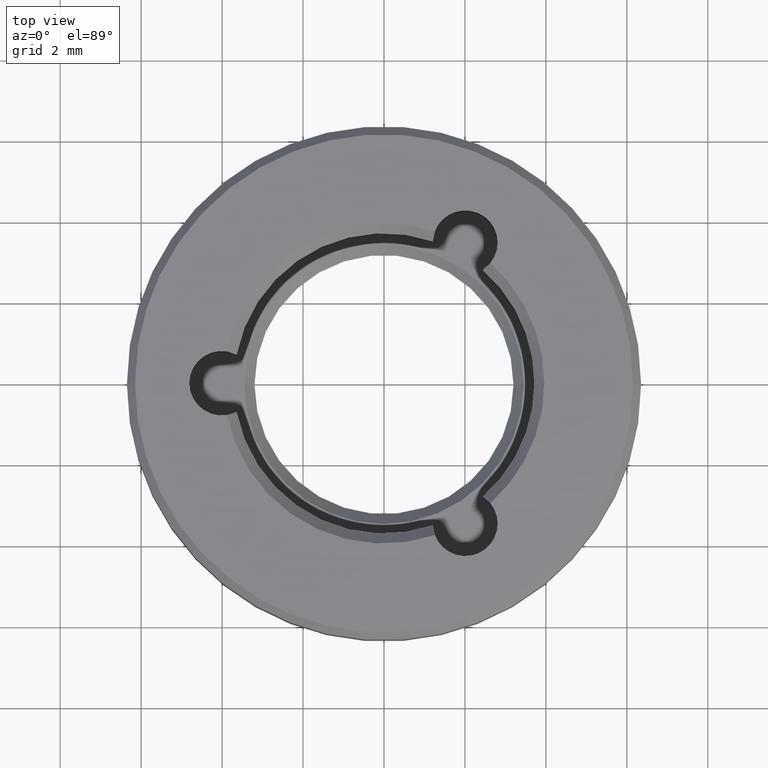
[diagram: clean part render]
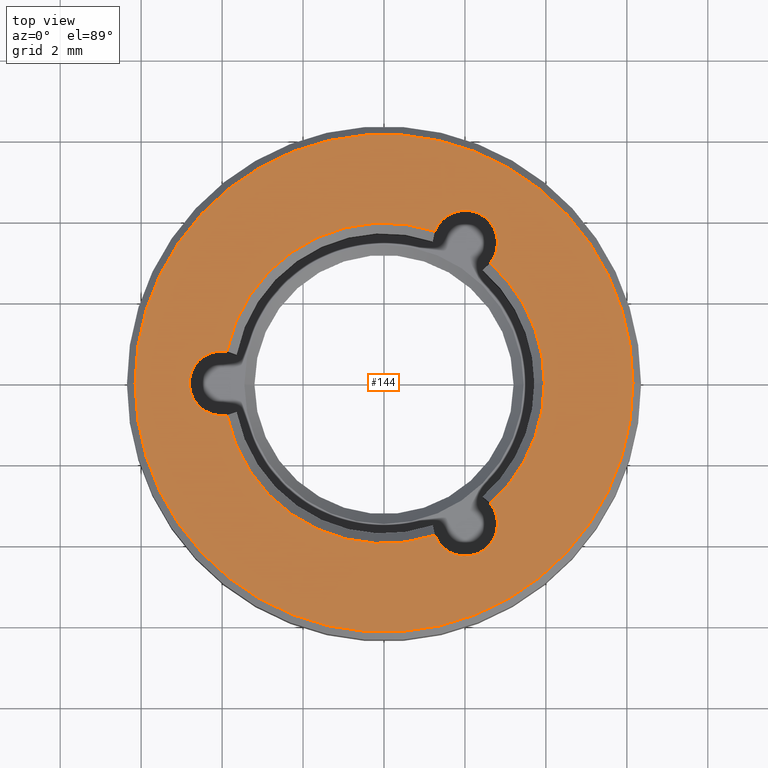
[diagram: same view with one face highlighted and labeled with its STEP entity id]
A machine part, top view. The second image highlights one B-rep face of the part: STEP entity #144.
In plain terms, the highlighted planar face has unit normal (0, 0, 1).
Its self-contained STEP definition (entity closure, byte-faithful):
#3 = AXIS2_PLACEMENT_3D ( 'NONE', #308, #315, #158 ) ;
#7 = VERTEX_POINT ( 'NONE', #389 ) ;
#11 = VERTEX_POINT ( 'NONE', #59 ) ;
#16 = VERTEX_POINT ( 'NONE', #618 ) ;
#20 = CIRCLE ( 'NONE', #313, 0.8000000000000010436 ) ;
#30 = VERTEX_POINT ( 'NONE', #197 ) ;
#37 = AXIS2_PLACEMENT_3D ( 'NONE', #757, #761, #411 ) ;
#59 = CARTESIAN_POINT ( 'NONE',  ( 2.623940108579774222, -2.965895869140787511, 2.200000000000000178 ) ) ;
#61 = EDGE_CURVE ( 'NONE', #16, #11, #572, .T. ) ;
#63 = CIRCLE ( 'NONE', #605, 3.960000000000003517 ) ;
#66 = CARTESIAN_POINT ( 'NONE',  ( 2.623940108579730701, 2.965895869140826591, 2.200000000000000178 ) ) ;
#70 = FACE_OUTER_BOUND ( 'NONE', #221, .T. ) ;
#96 = DIRECTION ( 'NONE',  ( 0.000000000000000000, 0.000000000000000000, 1.000000000000000000 ) ) ;
#103 = VERTEX_POINT ( 'NONE', #843 ) ;
#125 = DIRECTION ( 'NONE',  ( 1.000000000000000000, 0.000000000000000000, 0.000000000000000000 ) ) ;
#130 = VERTEX_POINT ( 'NONE', #66 ) ;
#134 = AXIS2_PLACEMENT_3D ( 'NONE', #479, #145, #351 ) ;
#139 = EDGE_LOOP ( 'NONE', ( #272, #749, #279, #310, #711, #725, #471, #446, #688 ) ) ;
#140 = DIRECTION ( 'NONE',  ( 0.000000000000000000, 0.000000000000000000, 1.000000000000000000 ) ) ;
#143 = DIRECTION ( 'NONE',  ( -0.4999999999999920064, -0.8660254037844432595, 0.000000000000000000 ) ) ;
#144 = ADVANCED_FACE ( 'NONE', ( #483, #70 ), #274, .T. ) ;
#145 = DIRECTION ( 'NONE',  ( -0.000000000000000000, -0.000000000000000000, -1.000000000000000000 ) ) ;
#158 = DIRECTION ( 'NONE',  ( -0.5000000000000039968, 0.8660254037844362651, 0.000000000000000000 ) ) ;
#163 = DIRECTION ( 'NONE',  ( 0.000000000000000000, 0.000000000000000000, 1.000000000000000000 ) ) ;
#174 = DIRECTION ( 'NONE',  ( 1.000000000000000000, 0.000000000000000000, 0.000000000000000000 ) ) ;
#178 = DIRECTION ( 'NONE',  ( 1.000000000000000000, -3.552713678800500929E-15, 0.000000000000000000 ) ) ;
#181 = CIRCLE ( 'NONE', #403, 3.960000000000003517 ) ;
#191 = EDGE_CURVE ( 'NONE', #30, #520, #883, .T. ) ;
#197 = CARTESIAN_POINT ( 'NONE',  ( -6.149999999999999467, 0.000000000000000000, 2.200000000000000178 ) ) ;
#221 = EDGE_LOOP ( 'NONE', ( #595, #903 ) ) ;
#238 = CARTESIAN_POINT ( 'NONE',  ( -3.880511221945140754, -0.7894508574685707991, 2.200000000000000178 ) ) ;
#244 = EDGE_CURVE ( 'NONE', #861, #103, #590, .T. ) ;
#256 = AXIS2_PLACEMENT_3D ( 'NONE', #571, #304, #434 ) ;
#268 = CIRCLE ( 'NONE', #3, 0.8000000000000009326 ) ;
#272 = ORIENTED_EDGE ( 'NONE', *, *, #277, .F. ) ;
#274 = PLANE ( 'NONE',  #37 ) ;
#277 = EDGE_CURVE ( 'NONE', #130, #7, #575, .T. ) ;
#279 = ORIENTED_EDGE ( 'NONE', *, *, #61, .T. ) ;
#280 = AXIS2_PLACEMENT_3D ( 'NONE', #355, #364, #633 ) ;
#284 = EDGE_CURVE ( 'NONE', #103, #11, #268, .T. ) ;
#293 = CARTESIAN_POINT ( 'NONE',  ( 2.004999999999967475, 3.472761869175617910, 2.200000000000000178 ) ) ;
#297 = EDGE_CURVE ( 'NONE', #861, #676, #869, .T. ) ;
#304 = DIRECTION ( 'NONE',  ( 0.000000000000000000, 0.000000000000000000, 1.000000000000000000 ) ) ;
#308 = CARTESIAN_POINT ( 'NONE',  ( 2.005000000000016769, -3.472761869175589489, 2.200000000000000178 ) ) ;
#310 = ORIENTED_EDGE ( 'NONE', *, *, #284, .F. ) ;
#313 = AXIS2_PLACEMENT_3D ( 'NONE', #555, #140, #143 ) ;
#315 = DIRECTION ( 'NONE',  ( 0.000000000000000000, 0.000000000000000000, 1.000000000000000000 ) ) ;
#318 = EDGE_CURVE ( 'NONE', #130, #16, #63, .T. ) ;
#339 = AXIS2_PLACEMENT_3D ( 'NONE', #343, #900, #125 ) ;
#343 = CARTESIAN_POINT ( 'NONE',  ( 0.000000000000000000, 0.000000000000000000, 2.200000000000000178 ) ) ;
#351 = DIRECTION ( 'NONE',  ( 1.000000000000000000, 0.000000000000000000, 0.000000000000000000 ) ) ;
#355 = CARTESIAN_POINT ( 'NONE',  ( -4.009999999999999787, -4.910833664580885594E-16, 2.200000000000000178 ) ) ;
#362 = VERTEX_POINT ( 'NONE', #598 ) ;
#364 = DIRECTION ( 'NONE',  ( 0.000000000000000000, 0.000000000000000000, 1.000000000000000000 ) ) ;
#373 = CARTESIAN_POINT ( 'NONE',  ( 0.000000000000000000, 0.000000000000000000, 2.200000000000000178 ) ) ;
#389 = CARTESIAN_POINT ( 'NONE',  ( 2.804999999999968185, 3.472761869175617910, 2.200000000000000178 ) ) ;
#403 = AXIS2_PLACEMENT_3D ( 'NONE', #373, #507, #844 ) ;
#411 = DIRECTION ( 'NONE',  ( 1.000000000000000000, 0.000000000000000000, -0.000000000000000000 ) ) ;
#434 = DIRECTION ( 'NONE',  ( -0.5000000000000039968, 0.8660254037844362651, 0.000000000000000000 ) ) ;
#446 = ORIENTED_EDGE ( 'NONE', *, *, #763, .T. ) ;
#454 = AXIS2_PLACEMENT_3D ( 'NONE', #293, #163, #518 ) ;
#457 = EDGE_CURVE ( 'NONE', #520, #30, #776, .T. ) ;
#471 = ORIENTED_EDGE ( 'NONE', *, *, #513, .F. ) ;
#479 = CARTESIAN_POINT ( 'NONE',  ( 0.000000000000000000, 0.000000000000000000, 2.200000000000000178 ) ) ;
#483 = FACE_BOUND ( 'NONE', #139, .T. ) ;
#485 = CARTESIAN_POINT ( 'NONE',  ( 6.149999999999999467, 7.654042494670954648E-16, 2.200000000000000178 ) ) ;
#490 = EDGE_CURVE ( 'NONE', #7, #641, #20, .T. ) ;
#501 = CARTESIAN_POINT ( 'NONE',  ( 0.000000000000000000, 0.000000000000000000, 2.200000000000000178 ) ) ;
#505 = DIRECTION ( 'NONE',  ( -0.000000000000000000, -0.000000000000000000, -1.000000000000000000 ) ) ;
#507 = DIRECTION ( 'NONE',  ( -0.000000000000000000, -0.000000000000000000, -1.000000000000000000 ) ) ;
#513 = EDGE_CURVE ( 'NONE', #362, #676, #726, .T. ) ;
#518 = DIRECTION ( 'NONE',  ( -0.4999999999999920064, -0.8660254037844432595, 0.000000000000000000 ) ) ;
#520 = VERTEX_POINT ( 'NONE', #485 ) ;
#555 = CARTESIAN_POINT ( 'NONE',  ( 2.004999999999967475, 3.472761869175617910, 2.200000000000000178 ) ) ;
#571 = CARTESIAN_POINT ( 'NONE',  ( 2.005000000000016769, -3.472761869175589489, 2.200000000000000178 ) ) ;
#572 = CIRCLE ( 'NONE', #134, 3.960000000000003517 ) ;
#575 = CIRCLE ( 'NONE', #454, 0.8000000000000010436 ) ;
#587 = CARTESIAN_POINT ( 'NONE',  ( 0.000000000000000000, 0.000000000000000000, 2.200000000000000178 ) ) ;
#590 = CIRCLE ( 'NONE', #256, 0.8000000000000009326 ) ;
#593 = CARTESIAN_POINT ( 'NONE',  ( 0.000000000000000000, 0.000000000000000000, 2.200000000000000178 ) ) ;
#595 = ORIENTED_EDGE ( 'NONE', *, *, #191, .T. ) ;
#598 = CARTESIAN_POINT ( 'NONE',  ( -3.880511221945140754, 0.7894508574685697999, 2.200000000000000178 ) ) ;
#604 = AXIS2_PLACEMENT_3D ( 'NONE', #501, #96, #174 ) ;
#605 = AXIS2_PLACEMENT_3D ( 'NONE', #593, #805, #178 ) ;
#618 = CARTESIAN_POINT ( 'NONE',  ( 3.960000000000003517, 0.000000000000000000, 2.200000000000000178 ) ) ;
#626 = CARTESIAN_POINT ( 'NONE',  ( 1.256571113365344994, 3.755346726609382735, 2.200000000000000178 ) ) ;
#633 = DIRECTION ( 'NONE',  ( 1.000000000000000000, 0.000000000000000000, 0.000000000000000000 ) ) ;
#641 = VERTEX_POINT ( 'NONE', #626 ) ;
#647 = CARTESIAN_POINT ( 'NONE',  ( 1.256571113365398507, -3.755346726609364527, 2.200000000000000178 ) ) ;
#676 = VERTEX_POINT ( 'NONE', #238 ) ;
#688 = ORIENTED_EDGE ( 'NONE', *, *, #490, .F. ) ;
#711 = ORIENTED_EDGE ( 'NONE', *, *, #244, .F. ) ;
#725 = ORIENTED_EDGE ( 'NONE', *, *, #297, .T. ) ;
#726 = CIRCLE ( 'NONE', #280, 0.8000000000000008216 ) ;
#749 = ORIENTED_EDGE ( 'NONE', *, *, #318, .T. ) ;
#751 = AXIS2_PLACEMENT_3D ( 'NONE', #587, #505, #868 ) ;
#757 = CARTESIAN_POINT ( 'NONE',  ( 0.000000000000000000, 0.000000000000000000, 2.200000000000000178 ) ) ;
#761 = DIRECTION ( 'NONE',  ( 0.000000000000000000, 0.000000000000000000, 1.000000000000000000 ) ) ;
#763 = EDGE_CURVE ( 'NONE', #362, #641, #181, .T. ) ;
#776 = CIRCLE ( 'NONE', #339, 6.149999999999999467 ) ;
#805 = DIRECTION ( 'NONE',  ( -0.000000000000000000, -0.000000000000000000, -1.000000000000000000 ) ) ;
#843 = CARTESIAN_POINT ( 'NONE',  ( 2.805000000000017479, -3.472761869175589489, 2.200000000000000178 ) ) ;
#844 = DIRECTION ( 'NONE',  ( 1.000000000000000000, 0.000000000000000000, 0.000000000000000000 ) ) ;
#861 = VERTEX_POINT ( 'NONE', #647 ) ;
#868 = DIRECTION ( 'NONE',  ( 1.000000000000000000, 0.000000000000000000, 0.000000000000000000 ) ) ;
#869 = CIRCLE ( 'NONE', #751, 3.960000000000003517 ) ;
#883 = CIRCLE ( 'NONE', #604, 6.149999999999999467 ) ;
#900 = DIRECTION ( 'NONE',  ( 0.000000000000000000, 0.000000000000000000, 1.000000000000000000 ) ) ;
#903 = ORIENTED_EDGE ( 'NONE', *, *, #457, .T. ) ;